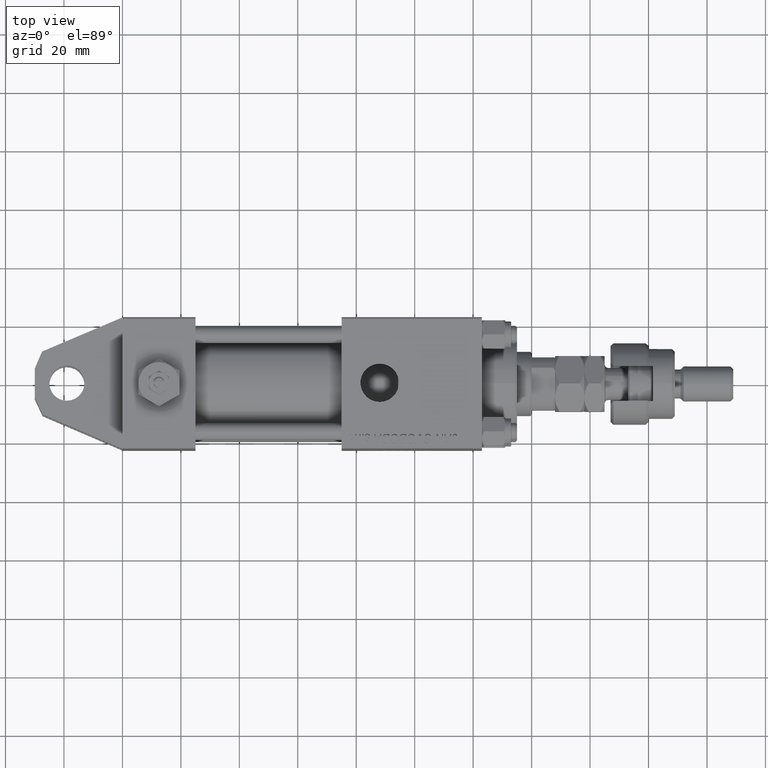
[diagram: clean part render]
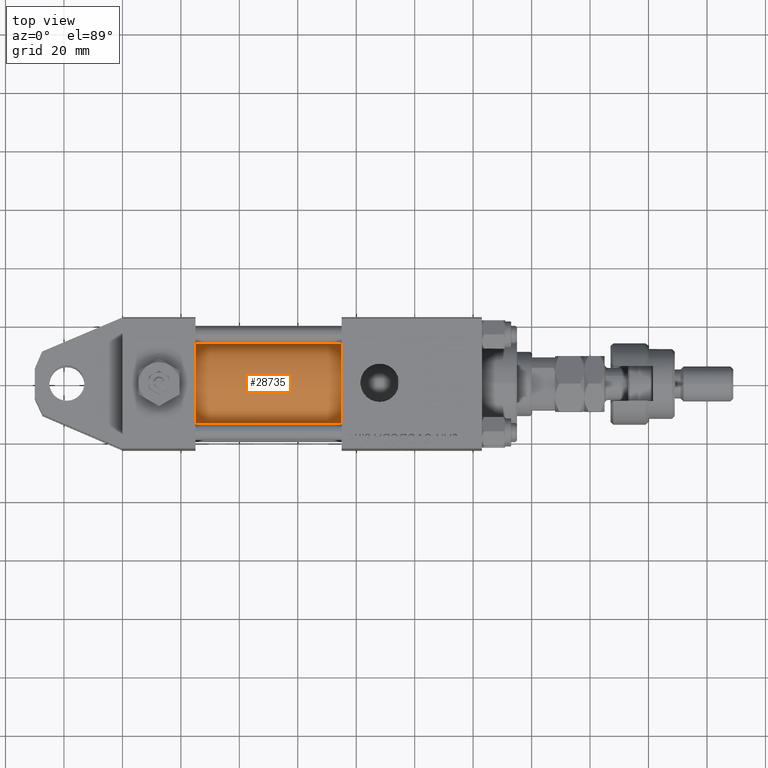
[diagram: same view with one face highlighted and labeled with its STEP entity id]
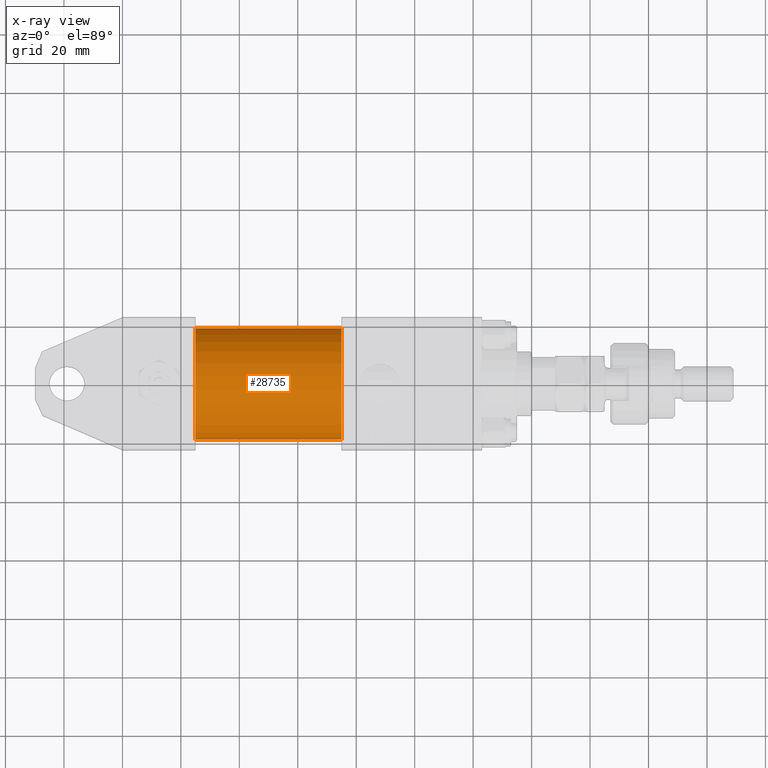
[diagram: x-ray of the same camera — body ghosted, the highlighted face saturated]
A machine part, top view. The second image highlights one B-rep face of the part: STEP entity #28735.
The next image is the same camera in x-ray: the body ghosted, the highlighted face saturated — about 0% of this face is hidden behind the body in this view.
In plain terms, the highlighted cylindrical surface (partial cylindrical patch) has radius 19 mm, axis along (-1, -0, 0).
Its self-contained STEP definition (entity closure, byte-faithful):
#1370 = ORIENTED_EDGE ( 'NONE', *, *, #15217, .F. ) ;
#4222 = VERTEX_POINT ( 'NONE', #35695 ) ;
#4695 = CARTESIAN_POINT ( 'NONE',  ( 25.00000000000000000, -3.469446951953614189E-15, 0.000000000000000000 ) ) ;
#5612 = EDGE_LOOP ( 'NONE', ( #43143, #1370, #20682, #10817 ) ) ;
#8193 = EDGE_CURVE ( 'NONE', #4222, #12609, #15039, .T. ) ;
#8751 = VERTEX_POINT ( 'NONE', #30667 ) ;
#10817 = ORIENTED_EDGE ( 'NONE', *, *, #17859, .T. ) ;
#12609 = VERTEX_POINT ( 'NONE', #15133 ) ;
#15039 = LINE ( 'NONE', #28547, #15640 ) ;
#15133 = CARTESIAN_POINT ( 'NONE',  ( 25.00000000000000000, -3.469446951953614189E-15, 19.00000000000000000 ) ) ;
#15217 = EDGE_CURVE ( 'NONE', #4222, #40762, #38677, .T. ) ;
#15640 = VECTOR ( 'NONE', #32963, 1000.000000000000000 ) ;
#16041 = FACE_OUTER_BOUND ( 'NONE', #5612, .T. ) ;
#17859 = EDGE_CURVE ( 'NONE', #12609, #8751, #27344, .T. ) ;
#18533 = AXIS2_PLACEMENT_3D ( 'NONE', #4695, #21509, #46849 ) ;
#20682 = ORIENTED_EDGE ( 'NONE', *, *, #8193, .T. ) ;
#21509 = DIRECTION ( 'NONE',  ( 1.000000000000000000, -0.000000000000000000, 0.000000000000000000 ) ) ;
#21964 = AXIS2_PLACEMENT_3D ( 'NONE', #35121, #25761, #47777 ) ;
#25144 = DIRECTION ( 'NONE',  ( -1.000000000000000000, -0.000000000000000000, -0.000000000000000000 ) ) ;
#25610 = VECTOR ( 'NONE', #31146, 1000.000000000000000 ) ;
#25761 = DIRECTION ( 'NONE',  ( 1.000000000000000000, 0.000000000000000000, 0.000000000000000000 ) ) ;
#27344 = CIRCLE ( 'NONE', #18533, 19.00000000000000000 ) ;
#28547 = CARTESIAN_POINT ( 'NONE',  ( 75.00000000000001421, -3.469446951953614189E-15, 19.00000000000000000 ) ) ;
#28735 = ADVANCED_FACE ( 'NONE', ( #16041 ), #29286, .T. ) ;
#29286 = CYLINDRICAL_SURFACE ( 'NONE', #32018, 19.00000000000000000 ) ;
#30667 = CARTESIAN_POINT ( 'NONE',  ( 25.00000000000000000, -1.142618033573643218E-15, -19.00000000000000000 ) ) ;
#31146 = DIRECTION ( 'NONE',  ( -1.000000000000000000, -0.000000000000000000, -0.000000000000000000 ) ) ;
#32018 = AXIS2_PLACEMENT_3D ( 'NONE', #50478, #25144, #41945 ) ;
#32963 = DIRECTION ( 'NONE',  ( -1.000000000000000000, -0.000000000000000000, -0.000000000000000000 ) ) ;
#34877 = CARTESIAN_POINT ( 'NONE',  ( 75.00000000000001421, -1.142618033573643218E-15, -19.00000000000000000 ) ) ;
#35121 = CARTESIAN_POINT ( 'NONE',  ( 75.00000000000001421, -3.469446951953614189E-15, 0.000000000000000000 ) ) ;
#35695 = CARTESIAN_POINT ( 'NONE',  ( 75.00000000000001421, -3.469446951953614189E-15, 19.00000000000000000 ) ) ;
#38677 = CIRCLE ( 'NONE', #21964, 19.00000000000000000 ) ;
#40762 = VERTEX_POINT ( 'NONE', #34877 ) ;
#41945 = DIRECTION ( 'NONE',  ( 0.000000000000000000, 0.000000000000000000, 1.000000000000000000 ) ) ;
#43143 = ORIENTED_EDGE ( 'NONE', *, *, #52272, .F. ) ;
#43254 = CARTESIAN_POINT ( 'NONE',  ( 75.00000000000001421, -1.142618033573643218E-15, -19.00000000000000000 ) ) ;
#46849 = DIRECTION ( 'NONE',  ( 0.000000000000000000, 0.000000000000000000, 1.000000000000000000 ) ) ;
#47777 = DIRECTION ( 'NONE',  ( 0.000000000000000000, 0.000000000000000000, -1.000000000000000000 ) ) ;
#50478 = CARTESIAN_POINT ( 'NONE',  ( 75.00000000000001421, -3.469446951953614189E-15, 0.000000000000000000 ) ) ;
#51257 = LINE ( 'NONE', #43254, #25610 ) ;
#52272 = EDGE_CURVE ( 'NONE', #40762, #8751, #51257, .T. ) ;